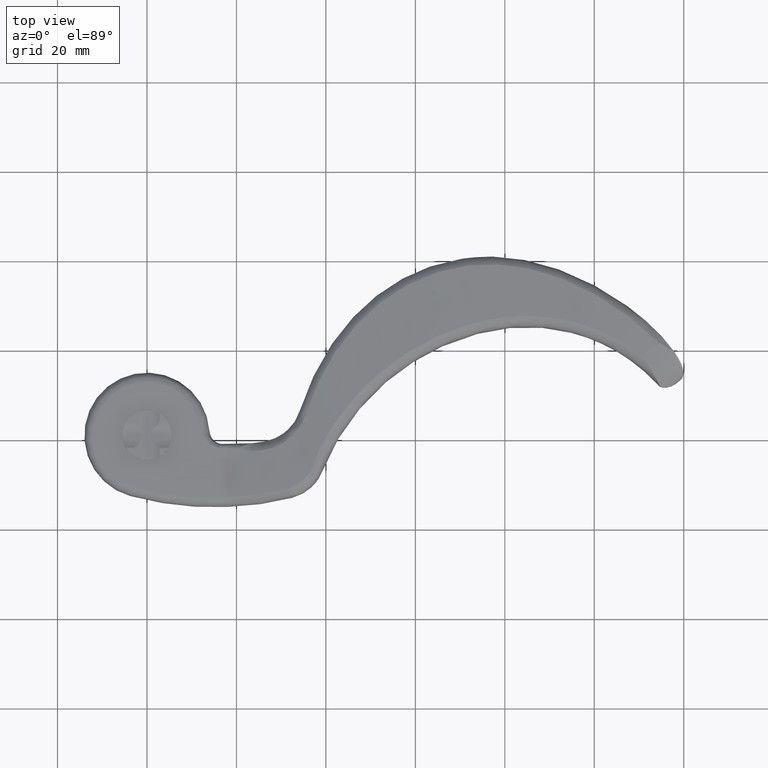
[diagram: clean part render]
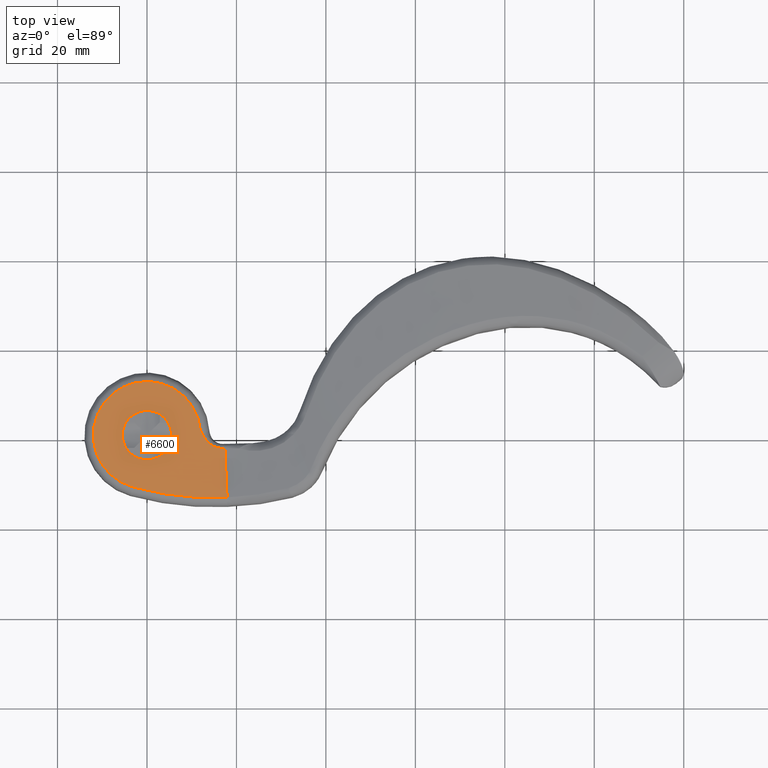
[diagram: same view with one face highlighted and labeled with its STEP entity id]
A machine part, top view. The second image highlights one B-rep face of the part: STEP entity #6600.
In plain terms, the highlighted planar face has unit normal (0, 0, 1).
Its self-contained STEP definition (entity closure, byte-faithful):
#21 = VERTEX_POINT ( 'NONE', #7109 ) ;
#734 = VERTEX_POINT ( 'NONE', #5357 ) ;
#854 = CARTESIAN_POINT ( 'NONE',  ( 15.06329541592801924, -2.572771417919894166, 9.000000000000003553 ) ) ;
#855 = CARTESIAN_POINT ( 'NONE',  ( 17.90745278963890286, -13.92758121659827530, 9.000000000000000000 ) ) ;
#924 = CARTESIAN_POINT ( 'NONE',  ( 14.77910367019704907, 53.60547632360797365, 9.000000000000000000 ) ) ;
#985 = VERTEX_POINT ( 'NONE', #11020 ) ;
#1840 = CARTESIAN_POINT ( 'NONE',  ( 14.08221141438756518, -1.969263293351416255, 9.000000000000001776 ) ) ;
#1974 = CARTESIAN_POINT ( 'NONE',  ( 14.31587670716120542, -2.144066985066866771, 9.000000000000003553 ) ) ;
#2016 = CARTESIAN_POINT ( 'NONE',  ( 17.39958638808764491, -2.964044344850876200, 9.000000000000000000 ) ) ;
#2371 = EDGE_CURVE ( 'NONE', #10675, #10675, #14070, .T. ) ;
#2402 = AXIS2_PLACEMENT_3D ( 'NONE', #6884, #13433, #13479 ) ;
#2969 = CARTESIAN_POINT ( 'NONE',  ( 17.38153163913335675, -2.943931490244105831, 9.000000000000000000 ) ) ;
#2995 = CARTESIAN_POINT ( 'NONE',  ( 17.02560611772223709, -2.955403943373433151, 9.000000000000000000 ) ) ;
#3032 = CARTESIAN_POINT ( 'NONE',  ( 16.73521123791592657, -2.966937936570980483, 9.000000000000000000 ) ) ;
#3077 = CARTESIAN_POINT ( 'NONE',  ( 11.95165838545281645, 1.076039886544837287, 9.000000000000000000 ) ) ;
#3120 = CARTESIAN_POINT ( 'NONE',  ( 17.02560611772223709, -2.955403943373433151, 9.000000000000000000 ) ) ;
#3143 = DIRECTION ( 'NONE',  ( 1.000000000000000000, 0.000000000000000000, 0.000000000000000000 ) ) ;
#3248 = EDGE_CURVE ( 'NONE', #734, #13380, #9891, .T. ) ;
#3619 = LINE ( 'NONE', #4357, #12499 ) ;
#3689 = ORIENTED_EDGE ( 'NONE', *, *, #13969, .T. ) ;
#3709 = CARTESIAN_POINT ( 'NONE',  ( 5.500000000000000000, 0.000000000000000000, 9.000000000000000000 ) ) ;
#3836 = AXIS2_PLACEMENT_3D ( 'NONE', #10921, #5354, #6487 ) ;
#3989 = EDGE_CURVE ( 'NONE', #985, #4371, #3619, .T. ) ;
#4195 = ORIENTED_EDGE ( 'NONE', *, *, #9690, .T. ) ;
#4201 = VERTEX_POINT ( 'NONE', #2995 ) ;
#4259 = FACE_BOUND ( 'NONE', #12752, .T. ) ;
#4357 = CARTESIAN_POINT ( 'NONE',  ( 18.00000000000001066, -15.92543882259885102, 9.000000000000000000 ) ) ;
#4371 = VERTEX_POINT ( 'NONE', #855 ) ;
#4659 = ORIENTED_EDGE ( 'NONE', *, *, #11374, .T. ) ;
#4682 = CARTESIAN_POINT ( 'NONE',  ( 17.34525836637419260, -2.941803008804041220, 9.000000000000000000 ) ) ;
#4914 = ORIENTED_EDGE ( 'NONE', *, *, #13129, .T. ) ;
#4946 = AXIS2_PLACEMENT_3D ( 'NONE', #7117, #8271, #13817 ) ;
#5092 = AXIS2_PLACEMENT_3D ( 'NONE', #924, #11995, #12143 ) ;
#5192 = CARTESIAN_POINT ( 'NONE',  ( 15.88371694292035485, -2.854179830760092962, 9.000000000000000000 ) ) ;
#5195 = ORIENTED_EDGE ( 'NONE', *, *, #3248, .T. ) ;
#5244 = CARTESIAN_POINT ( 'NONE',  ( 13.43679233799605832, -1.397973701641282762, 9.000000000000005329 ) ) ;
#5329 = CARTESIAN_POINT ( 'NONE',  ( 17.39966935579954210, -2.944977102769667621, 9.000000000000000000 ) ) ;
#5338 = CARTESIAN_POINT ( 'NONE',  ( 17.39932021770183823, -2.951291746946442363, 9.000000000000000000 ) ) ;
#5354 = DIRECTION ( 'NONE',  ( 0.000000000000000000, 0.000000000000000000, 1.000000000000000000 ) ) ;
#5357 = CARTESIAN_POINT ( 'NONE',  ( 11.95165838545281645, 1.076039886544837287, 9.000000000000000000 ) ) ;
#5416 = DIRECTION ( 'NONE',  ( 0.000000000000000000, 0.000000000000000000, 1.000000000000000000 ) ) ;
#6031 = B_SPLINE_CURVE_WITH_KNOTS ( 'NONE', 3,
 ( #3120, #3032, #11933, #5192, #8613, #854, #6330, #1974, #1840, #5244, #12021, #13036, #11833, #6373, #12899, #9743, #7504, #3077 ),
 .UNSPECIFIED., .F., .F.,
 ( 4, 2, 2, 2, 2, 2, 2, 2, 4 ),
 ( 0.000000000000000000, 0.0008589271823195308896, 0.001717854364639061779, 0.002576781546958592777, 0.003435708729278123558, 0.005153563093917185554, 0.006012490276236716336, 0.006441953867396481292, 0.006871417458556247117 ),
 .UNSPECIFIED. ) ;
#6257 = VERTEX_POINT ( 'NONE', #4682 ) ;
#6330 = CARTESIAN_POINT ( 'NONE',  ( 14.80639580877894446, -2.445413613285917442, 9.000000000000001776 ) ) ;
#6373 = CARTESIAN_POINT ( 'NONE',  ( 12.26192545471118756, 0.4229601338777211894, 9.000000000000000000 ) ) ;
#6487 = DIRECTION ( 'NONE',  ( 1.000000000000000000, 0.000000000000000000, -0.000000000000000000 ) ) ;
#6600 = ADVANCED_FACE ( 'NONE', ( #4259, #10895 ), #8915, .T. ) ;
#6630 = AXIS2_PLACEMENT_3D ( 'NONE', #12054, #5416, #3143 ) ;
#6884 = CARTESIAN_POINT ( 'NONE',  ( 14.77910367019704907, 53.60547632360797365, 9.000000000000000000 ) ) ;
#6973 = B_SPLINE_CURVE_WITH_KNOTS ( 'NONE', 3,
 ( #2016, #12020, #5338, #13139 ),
 .UNSPECIFIED., .F., .F.,
 ( 4, 4 ),
 ( 4.336808689942017736E-19, 1.892380357645996624E-05 ),
 .UNSPECIFIED. ) ;
#7109 = CARTESIAN_POINT ( 'NONE',  ( 17.39966935579954210, -2.944977102769667621, 9.000000000000000000 ) ) ;
#7117 = CARTESIAN_POINT ( 'NONE',  ( 0.000000000000000000, 0.000000000000000000, 9.000000000000000000 ) ) ;
#7504 = CARTESIAN_POINT ( 'NONE',  ( 12.01135983889323811, 0.9459285648725748175, 9.000000000000003553 ) ) ;
#7524 = ORIENTED_EDGE ( 'NONE', *, *, #10296, .T. ) ;
#7538 = CIRCLE ( 'NONE', #5092, 67.60547632360798787 ) ;
#8271 = DIRECTION ( 'NONE',  ( 0.000000000000000000, 0.000000000000000000, 1.000000000000000000 ) ) ;
#8613 = CARTESIAN_POINT ( 'NONE',  ( 15.60201072111768639, -2.777579076891374399, 9.000000000000001776 ) ) ;
#8915 = PLANE ( 'NONE',  #3836 ) ;
#9690 = EDGE_CURVE ( 'NONE', #21, #6257, #10344, .T. ) ;
#9743 = CARTESIAN_POINT ( 'NONE',  ( 12.07288524233414329, 0.8134572387049994191, 9.000000000000003553 ) ) ;
#9891 = CIRCLE ( 'NONE', #4946, 12.00000000000000178 ) ;
#9909 = DIRECTION ( 'NONE',  ( 0.04627360518055241567, -0.9989288030002911878, -0.000000000000000000 ) ) ;
#9955 = ORIENTED_EDGE ( 'NONE', *, *, #2371, .F. ) ;
#10296 = EDGE_CURVE ( 'NONE', #985, #21, #6973, .T. ) ;
#10344 = B_SPLINE_CURVE_WITH_KNOTS ( 'NONE', 3,
 ( #5329, #2969, #12980, #14151 ),
 .UNSPECIFIED., .F., .F.,
 ( 4, 4 ),
 ( 0.000000000000000000, 5.450349202343009240E-05 ),
 .UNSPECIFIED. ) ;
#10484 = CIRCLE ( 'NONE', #2402, 56.60547632360797365 ) ;
#10675 = VERTEX_POINT ( 'NONE', #3709 ) ;
#10757 = CARTESIAN_POINT ( 'NONE',  ( -3.189420463017758056, -11.56838783539365600, 9.000000000000000000 ) ) ;
#10895 = FACE_OUTER_BOUND ( 'NONE', #12210, .T. ) ;
#10921 = CARTESIAN_POINT ( 'NONE',  ( 14.77910367019704907, 53.60547632360797365, 9.000000000000000000 ) ) ;
#11020 = CARTESIAN_POINT ( 'NONE',  ( 17.39958638808764491, -2.964044344850876200, 9.000000000000000000 ) ) ;
#11374 = EDGE_CURVE ( 'NONE', #4201, #734, #6031, .T. ) ;
#11833 = CARTESIAN_POINT ( 'NONE',  ( 12.46099145657095164, 0.03753900841197808924, 9.000000000000000000 ) ) ;
#11933 = CARTESIAN_POINT ( 'NONE',  ( 16.44886303071562139, -2.948187135962974548, 9.000000000000001776 ) ) ;
#11995 = DIRECTION ( 'NONE',  ( 0.000000000000000000, 0.000000000000000000, 1.000000000000000000 ) ) ;
#12020 = CARTESIAN_POINT ( 'NONE',  ( 17.39929005045728516, -2.957647173218787007, 9.000000000000000000 ) ) ;
#12021 = CARTESIAN_POINT ( 'NONE',  ( 13.06950436872120491, -0.9448810471142111700, 9.000000000000001776 ) ) ;
#12054 = CARTESIAN_POINT ( 'NONE',  ( 0.000000000000000000, 0.000000000000000000, 9.000000000000000000 ) ) ;
#12143 = DIRECTION ( 'NONE',  ( 1.000000000000000000, 0.000000000000000000, 0.000000000000000000 ) ) ;
#12210 = EDGE_LOOP ( 'NONE', ( #3689, #4659, #5195, #4914, #13604, #7524, #4195 ) ) ;
#12499 = VECTOR ( 'NONE', #9909, 999.9999999999998863 ) ;
#12752 = EDGE_LOOP ( 'NONE', ( #9955 ) ) ;
#12899 = CARTESIAN_POINT ( 'NONE',  ( 12.19788764825799987, 0.5526071885432185526, 9.000000000000001776 ) ) ;
#12980 = CARTESIAN_POINT ( 'NONE',  ( 17.36339463424753404, -2.942873456861144099, 9.000000000000000000 ) ) ;
#13036 = CARTESIAN_POINT ( 'NONE',  ( 12.60326166895854527, -0.2149615616066150869, 9.000000000000005329 ) ) ;
#13129 = EDGE_CURVE ( 'NONE', #13380, #4371, #7538, .T. ) ;
#13139 = CARTESIAN_POINT ( 'NONE',  ( 17.39966935579954210, -2.944977102769667621, 9.000000000000000000 ) ) ;
#13380 = VERTEX_POINT ( 'NONE', #10757 ) ;
#13433 = DIRECTION ( 'NONE',  ( -0.000000000000000000, -0.000000000000000000, -1.000000000000000000 ) ) ;
#13479 = DIRECTION ( 'NONE',  ( 1.000000000000000000, 0.000000000000000000, 0.000000000000000000 ) ) ;
#13604 = ORIENTED_EDGE ( 'NONE', *, *, #3989, .F. ) ;
#13817 = DIRECTION ( 'NONE',  ( 1.000000000000000000, 0.000000000000000000, 0.000000000000000000 ) ) ;
#13969 = EDGE_CURVE ( 'NONE', #6257, #4201, #10484, .T. ) ;
#14070 = CIRCLE ( 'NONE', #6630, 5.500000000000000000 ) ;
#14151 = CARTESIAN_POINT ( 'NONE',  ( 17.34525836637419260, -2.941803008804041220, 9.000000000000000000 ) ) ;